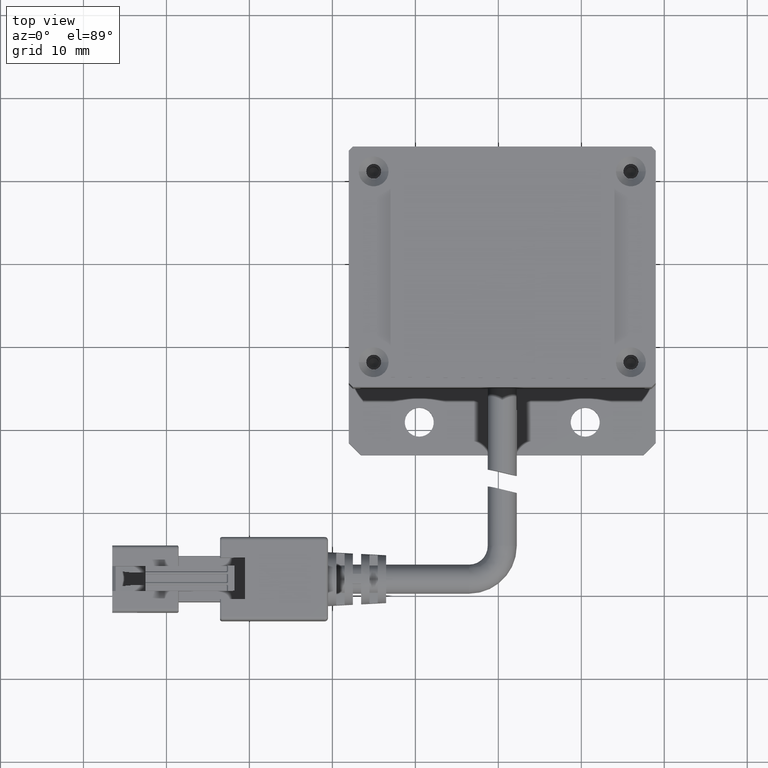
[diagram: clean part render]
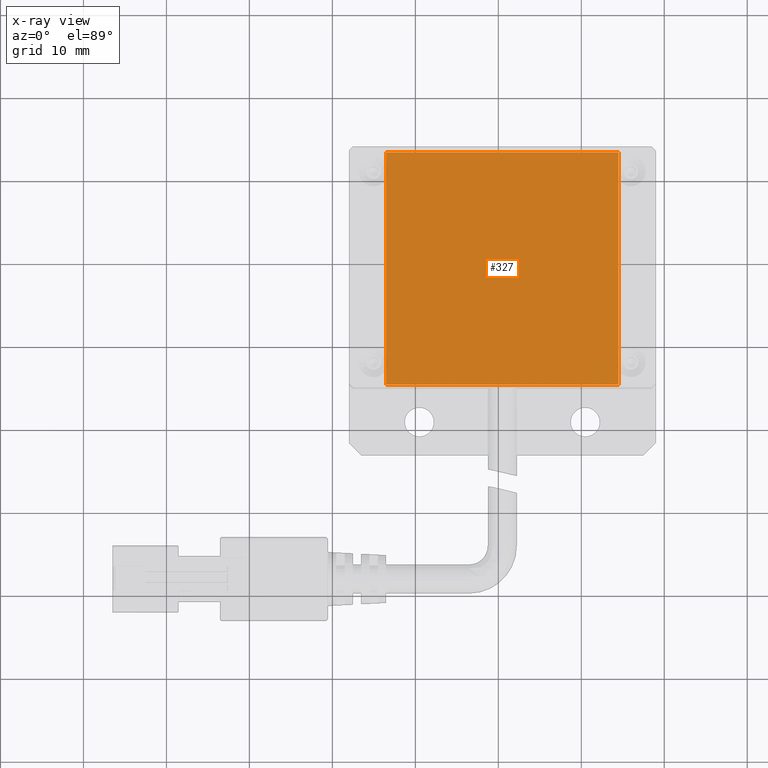
[diagram: x-ray — body ghosted, one internal face saturated and labeled with its STEP entity id]
A machine part, top view, then the same camera in x-ray: the body is ghosted and one INTERNAL B-rep face — a face not visible from any outside direction — is saturated and labeled: STEP entity #327.
In plain terms, the highlighted planar face has unit normal (0, 0, 1).
Its self-contained STEP definition (entity closure, byte-faithful):
#327 = ADVANCED_FACE ( 'NONE', ( #21010 ), #4075, .F. ) ;
#758 = CARTESIAN_POINT ( 'NONE',  ( 14.47059946544482200, 13.44635357006494500, 0.2999999999836304200 ) ) ;
#912 = ORIENTED_EDGE ( 'NONE', *, *, #12926, .F. ) ;
#1794 = DIRECTION ( 'NONE',  ( -1.084202172485504600E-016, -1.000000000000000000, -0.0000000000000000000 ) ) ;
#2933 = VECTOR ( 'NONE', #24903, 1000.000000000000000 ) ;
#3078 = CARTESIAN_POINT ( 'NONE',  ( 0.4705994654448219500, -0.5536464299350507500, 0.2999999999836304200 ) ) ;
#4075 = PLANE ( 'NONE',  #17717 ) ;
#4416 = EDGE_CURVE ( 'NONE', #23028, #15184, #25096, .T. ) ;
#6413 = CARTESIAN_POINT ( 'NONE',  ( -13.52940053455517800, -14.55364642993505300, 0.2999999999836304200 ) ) ;
#6465 = ORIENTED_EDGE ( 'NONE', *, *, #17275, .F. ) ;
#6593 = DIRECTION ( 'NONE',  ( 1.000000000000000000, -1.084202172485504600E-016, 0.0000000000000000000 ) ) ;
#8452 = CARTESIAN_POINT ( 'NONE',  ( -13.52940053455517800, 13.44635357006494800, 0.2999999999836304200 ) ) ;
#8556 = DIRECTION ( 'NONE',  ( -1.000000000000000000, 1.084202172485504600E-016, -0.0000000000000000000 ) ) ;
#8636 = ORIENTED_EDGE ( 'NONE', *, *, #12730, .F. ) ;
#9140 = VERTEX_POINT ( 'NONE', #6413 ) ;
#9395 = VECTOR ( 'NONE', #8556, 1000.000000000000000 ) ;
#10515 = LINE ( 'NONE', #12605, #26193 ) ;
#10588 = CARTESIAN_POINT ( 'NONE',  ( 0.4705994654448204000, -14.55364642993505500, 0.2999999999836304200 ) ) ;
#12605 = CARTESIAN_POINT ( 'NONE',  ( 14.47059946544482400, -0.5536464299350523100, 0.2999999999836304200 ) ) ;
#12730 = EDGE_CURVE ( 'NONE', #15184, #9140, #22215, .T. ) ;
#12926 = EDGE_CURVE ( 'NONE', #9140, #17593, #18718, .T. ) ;
#15184 = VERTEX_POINT ( 'NONE', #8452 ) ;
#16784 = VECTOR ( 'NONE', #1794, 1000.000000000000000 ) ;
#16912 = DIRECTION ( 'NONE',  ( 0.0000000000000000000, 0.0000000000000000000, 1.000000000000000000 ) ) ;
#17275 = EDGE_CURVE ( 'NONE', #17593, #23028, #10515, .T. ) ;
#17593 = VERTEX_POINT ( 'NONE', #24100 ) ;
#17717 = AXIS2_PLACEMENT_3D ( 'NONE', #3078, #16912, #6593 ) ;
#18718 = LINE ( 'NONE', #10588, #2933 ) ;
#19777 = ORIENTED_EDGE ( 'NONE', *, *, #4416, .F. ) ;
#20857 = CARTESIAN_POINT ( 'NONE',  ( 0.4705994654448234500, 13.44635357006494700, 0.2999999999836304200 ) ) ;
#21010 = FACE_OUTER_BOUND ( 'NONE', #22676, .T. ) ;
#22215 = LINE ( 'NONE', #26353, #16784 ) ;
#22676 = EDGE_LOOP ( 'NONE', ( #8636, #19777, #6465, #912 ) ) ;
#23028 = VERTEX_POINT ( 'NONE', #758 ) ;
#24100 = CARTESIAN_POINT ( 'NONE',  ( 14.47059946544482200, -14.55364642993505700, 0.2999999999836304200 ) ) ;
#24820 = DIRECTION ( 'NONE',  ( 1.084202172485504600E-016, 1.000000000000000000, 0.0000000000000000000 ) ) ;
#24903 = DIRECTION ( 'NONE',  ( 1.000000000000000000, -1.084202172485504600E-016, 0.0000000000000000000 ) ) ;
#25096 = LINE ( 'NONE', #20857, #9395 ) ;
#26193 = VECTOR ( 'NONE', #24820, 1000.000000000000000 ) ;
#26353 = CARTESIAN_POINT ( 'NONE',  ( -13.52940053455518000, -0.5536464299350492000, 0.2999999999836304200 ) ) ;